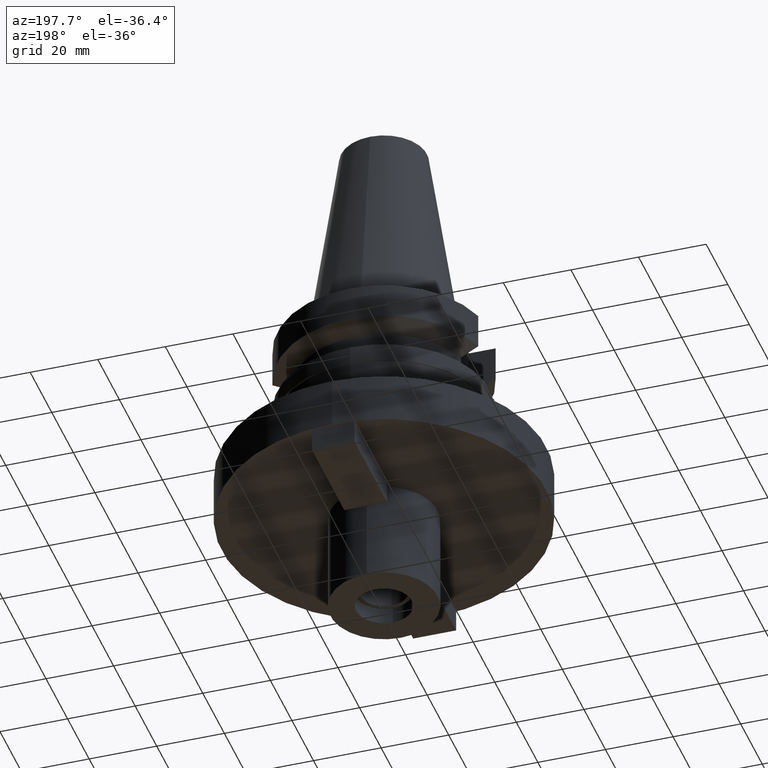
[diagram: clean part render]
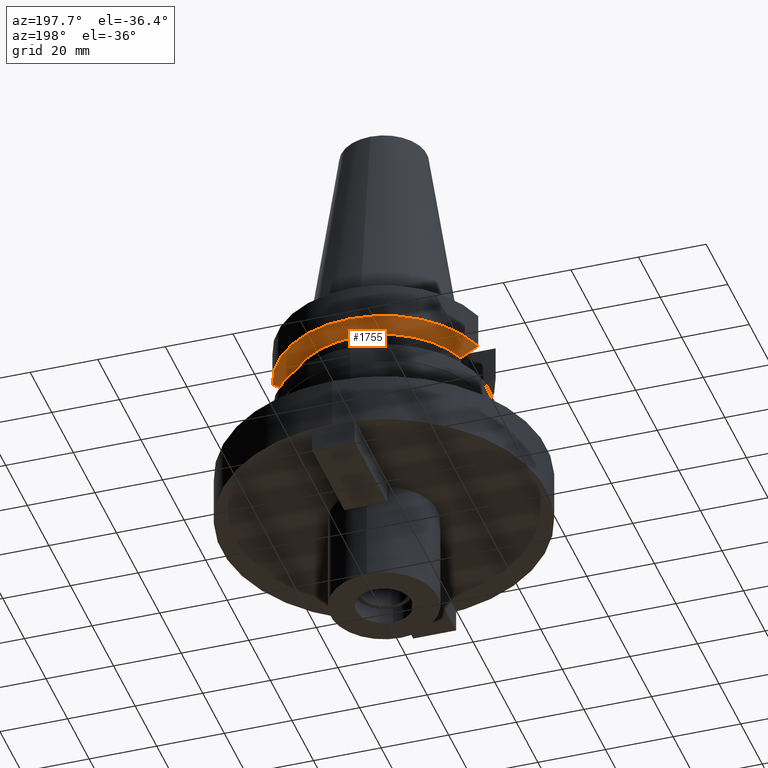
[diagram: same view with one face highlighted and labeled with its STEP entity id]
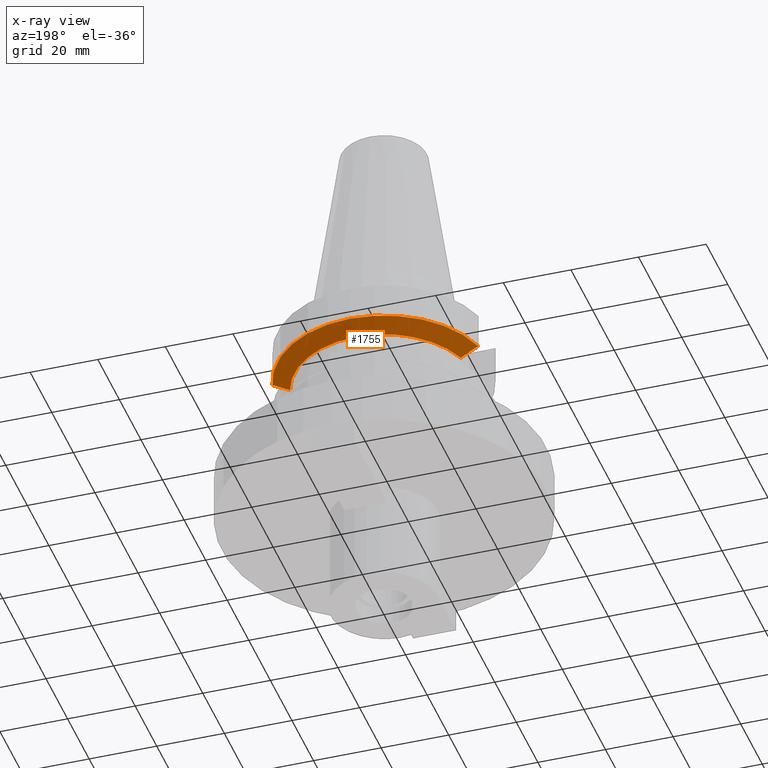
[diagram: x-ray of the same camera — body ghosted, the highlighted face saturated]
A machine part, auxiliary view. The second image highlights one B-rep face of the part: STEP entity #1755.
The next image is the same camera in x-ray: the body ghosted, the highlighted face saturated — about 0% of this face is hidden behind the body in this view.
In plain terms, the highlighted conical surface has half-angle 60 deg.
Its self-contained STEP definition (entity closure, byte-faithful):
#344=CARTESIAN_POINT('',(3.045402291370E1,8.049999277759E0,-1.156551215774E1));
#345=CARTESIAN_POINT('',(2.987645774371E1,8.049999277759E0,-1.188789690763E1));
#346=CARTESIAN_POINT('',(2.872091199430E1,8.049999725848E0,-1.253193850427E1));
#347=CARTESIAN_POINT('',(2.698538662767E1,8.050002042892E0,-1.349404337535E1));
#348=CARTESIAN_POINT('',(2.582730530271E1,8.049995416020E0,-1.413348340749E1));
#349=CARTESIAN_POINT('',(2.524772413114E1,8.049995416020E0,-1.445229202620E1));
#388=CARTESIAN_POINT('',(-2.524772216384E1,8.050001586177E0,-1.445224487882E1));
#389=CARTESIAN_POINT('',(-2.582727361698E1,8.050001586177E0,-1.413345268177E1));
#390=CARTESIAN_POINT('',(-2.698547393282E1,8.049999812282E0,-1.349419203072E1));
#391=CARTESIAN_POINT('',(-2.872100161171E1,8.049998277747E0,-1.253209180131E1));
#392=CARTESIAN_POINT('',(-2.987642831020E1,8.050004143736E0,-1.188786874792E1));
#393=CARTESIAN_POINT('',(-3.045402162746E1,8.050004143736E0,-1.156546832766E1));
#398=CARTESIAN_POINT('',(0.E0,1.065333950388E-14,-1.445225699861E1));
#399=DIRECTION('',(0.E0,0.E0,-1.E0));
#400=DIRECTION('',(-9.527442516822E-1,3.037735849057E-1,0.E0));
#401=AXIS2_PLACEMENT_3D('',#398,#399,#400);
#406=CARTESIAN_POINT('',(0.E0,1.065333950388E-14,-1.445225699861E1));
#407=DIRECTION('',(0.E0,0.E0,-1.E0));
#408=DIRECTION('',(0.E0,1.E0,0.E0));
#409=AXIS2_PLACEMENT_3D('',#406,#407,#408);
#414=CARTESIAN_POINT('',(0.E0,1.065333950388E-14,-1.156550565267E1));
#415=DIRECTION('',(0.E0,0.E0,1.E0));
#416=DIRECTION('',(9.667943721520E-1,2.555555555555E-1,0.E0));
#417=AXIS2_PLACEMENT_3D('',#414,#415,#416);
#422=CARTESIAN_POINT('',(0.E0,1.065333950388E-14,-1.156550565267E1));
#423=DIRECTION('',(0.E0,0.E0,1.E0));
#424=DIRECTION('',(0.E0,1.E0,0.E0));
#425=AXIS2_PLACEMENT_3D('',#422,#423,#424);
#1394=CARTESIAN_POINT('',(-2.524772216384E1,8.050001586177E0,
-1.445224487882E1));
#1395=VERTEX_POINT('',#1394);
#1396=CARTESIAN_POINT('',(2.524772413114E1,8.049995416020E0,-1.445229202620E1));
#1397=VERTEX_POINT('',#1396);
#1398=CARTESIAN_POINT('',(0.E0,2.65E1,-1.445225699861E1));
#1399=VERTEX_POINT('',#1398);
#1430=VERTEX_POINT('',#393);
#1435=VERTEX_POINT('',#344);
#1436=CARTESIAN_POINT('',(0.E0,3.15E1,-1.156550565267E1));
#1437=VERTEX_POINT('',#1436);
#1740=CARTESIAN_POINT('',(0.E0,1.065333950388E-14,-1.300888132564E1));
#1741=DIRECTION('',(0.E0,0.E0,1.E0));
#1742=DIRECTION('',(0.E0,1.E0,0.E0));
#1743=AXIS2_PLACEMENT_3D('',#1740,#1741,#1742);
#1744=CONICAL_SURFACE('',#1743,2.9E1,6.E1);
#1745=ORIENTED_EDGE('',*,*,#1729,.F.);
#1746=ORIENTED_EDGE('',*,*,#1718,.T.);
#1747=ORIENTED_EDGE('',*,*,#1716,.T.);
#1748=ORIENTED_EDGE('',*,*,#1695,.F.);
#1750=ORIENTED_EDGE('',*,*,#1749,.T.);
#1752=ORIENTED_EDGE('',*,*,#1751,.T.);
#1753=EDGE_LOOP('',(#1745,#1746,#1747,#1748,#1750,#1752));
#1754=FACE_OUTER_BOUND('',#1753,.F.);
#350=B_SPLINE_CURVE_WITH_KNOTS('',3,(#344,#345,#346,#347,#348,#349),
.UNSPECIFIED.,.F.,.F.,(4,1,1,4),(0.E0,3.333333333333E-1,6.666666666667E-1,1.E0),
.UNSPECIFIED.);
#394=B_SPLINE_CURVE_WITH_KNOTS('',3,(#388,#389,#390,#391,#392,#393),
.UNSPECIFIED.,.F.,.F.,(4,1,1,4),(0.E0,3.333333333333E-1,6.666666666667E-1,1.E0),
.UNSPECIFIED.);
#402=CIRCLE('',#401,2.65E1);
#410=CIRCLE('',#409,2.65E1);
#418=CIRCLE('',#417,3.15E1);
#426=CIRCLE('',#425,3.15E1);
#1695=EDGE_CURVE('',#1435,#1397,#350,.T.);
#1716=EDGE_CURVE('',#1399,#1397,#410,.T.);
#1718=EDGE_CURVE('',#1395,#1399,#402,.T.);
#1729=EDGE_CURVE('',#1395,#1430,#394,.T.);
#1749=EDGE_CURVE('',#1435,#1437,#418,.T.);
#1751=EDGE_CURVE('',#1437,#1430,#426,.T.);
#1755=ADVANCED_FACE('',(#1754),#1744,.T.);